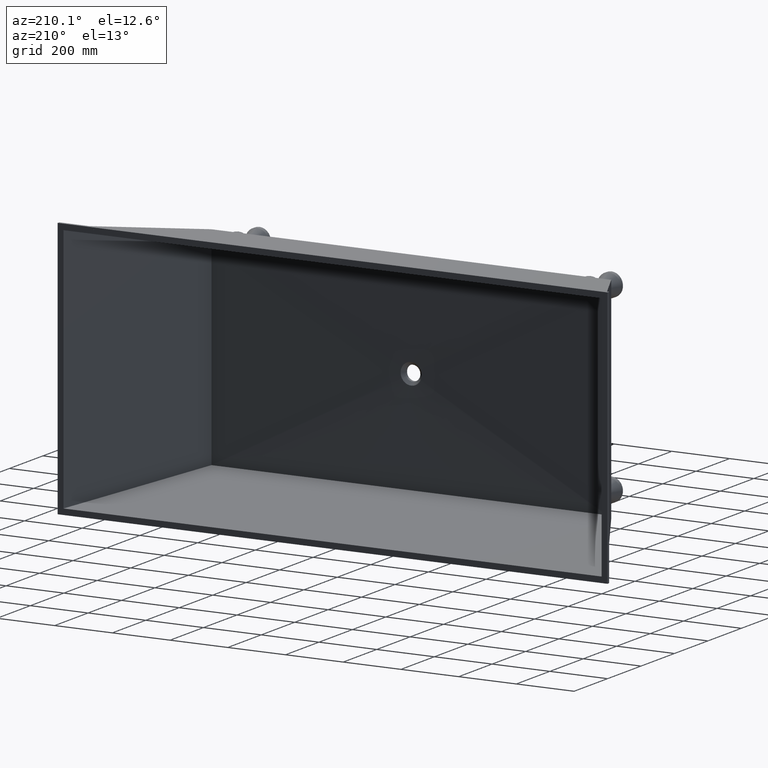
[diagram: clean part render]
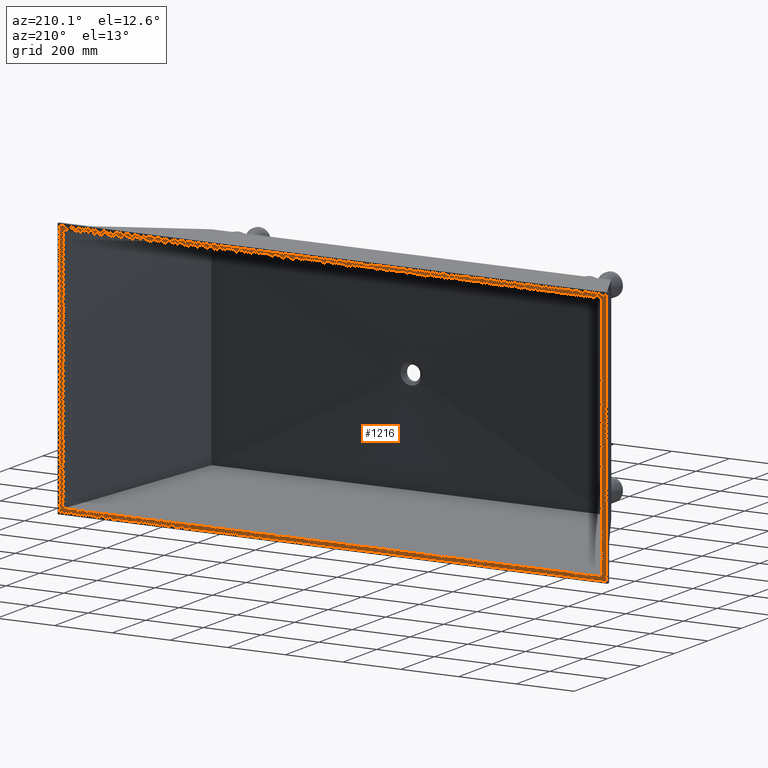
[diagram: same view with one face highlighted and labeled with its STEP entity id]
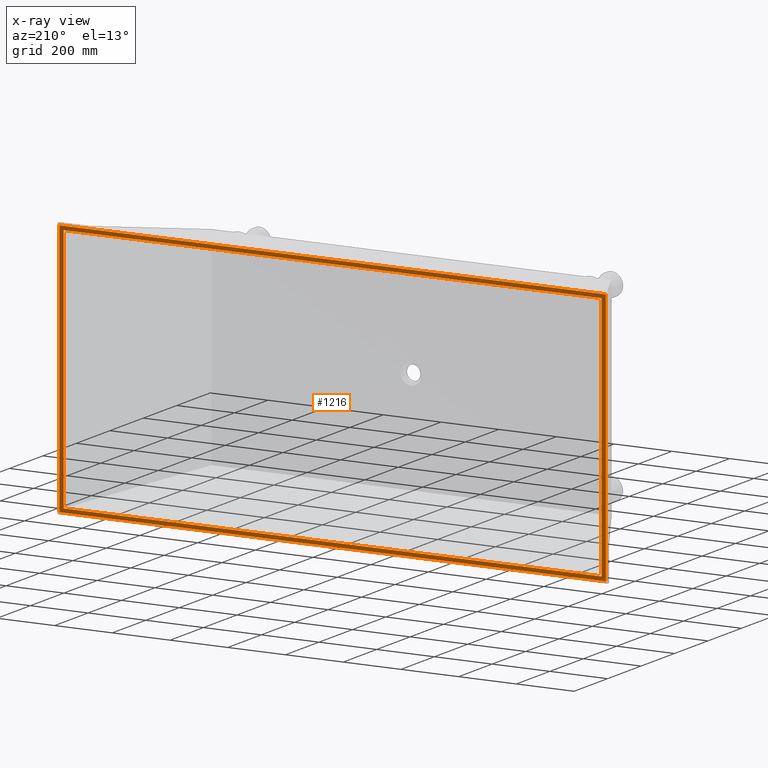
[diagram: x-ray of the same camera — body ghosted, the highlighted face saturated]
A machine part, auxiliary view. The second image highlights one B-rep face of the part: STEP entity #1216.
The next image is the same camera in x-ray: the body ghosted, the highlighted face saturated — about 0% of this face is hidden behind the body in this view.
In plain terms, the highlighted planar face has unit normal (0, -1, 0).
Its self-contained STEP definition (entity closure, byte-faithful):
#51 = FACE_BOUND ( 'NONE', #6508, .T. ) ;
#80 = DIRECTION ( 'NONE',  ( 0.0000000000000000000, 0.0000000000000000000, -1.000000000000000000 ) ) ;
#132 = VERTEX_POINT ( 'NONE', #647 ) ;
#165 = CARTESIAN_POINT ( 'NONE',  ( 0.0000000000000000000, 0.0000000000000000000, -855.0000000000000000 ) ) ;
#220 = EDGE_CURVE ( 'NONE', #720, #3292, #4341, .T. ) ;
#639 = LINE ( 'NONE', #6692, #5757 ) ;
#647 = CARTESIAN_POINT ( 'NONE',  ( -14.77674385156322300, 0.0000000000000000000, -868.1618687448989200 ) ) ;
#654 = LINE ( 'NONE', #8546, #4106 ) ;
#720 = VERTEX_POINT ( 'NONE', #1906 ) ;
#799 = CARTESIAN_POINT ( 'NONE',  ( 1879.776743851563400, -5.551115123125782700E-014, -72.49999999999995700 ) ) ;
#809 = ORIENTED_EDGE ( 'NONE', *, *, #3226, .T. ) ;
#852 = VECTOR ( 'NONE', #80, 1000.000000000000000 ) ;
#990 = ORIENTED_EDGE ( 'NONE', *, *, #6349, .T. ) ;
#1042 = VECTOR ( 'NONE', #5153, 1000.000000000000000 ) ;
#1085 = EDGE_CURVE ( 'NONE', #3806, #3351, #2160, .T. ) ;
#1119 = EDGE_CURVE ( 'NONE', #3274, #720, #1947, .T. ) ;
#1216 = ADVANCED_FACE ( 'NONE', ( #1750, #51 ), #2994, .F. ) ;
#1233 = ORIENTED_EDGE ( 'NONE', *, *, #1119, .T. ) ;
#1315 = EDGE_LOOP ( 'NONE', ( #990, #1233, #6347, #809 ) ) ;
#1750 = FACE_OUTER_BOUND ( 'NONE', #1315, .T. ) ;
#1819 = ORIENTED_EDGE ( 'NONE', *, *, #2954, .F. ) ;
#1906 = CARTESIAN_POINT ( 'NONE',  ( 1879.776743851563400, 0.0000000000000000000, 13.16186874489919800 ) ) ;
#1947 = LINE ( 'NONE', #5474, #7147 ) ;
#2160 = LINE ( 'NONE', #5485, #2559 ) ;
#2230 = ORIENTED_EDGE ( 'NONE', *, *, #4772, .F. ) ;
#2559 = VECTOR ( 'NONE', #4074, 1000.000000000000000 ) ;
#2731 = LINE ( 'NONE', #5345, #1042 ) ;
#2879 = CARTESIAN_POINT ( 'NONE',  ( 0.0000000000000000000, 0.0000000000000000000, -855.0000000000000000 ) ) ;
#2954 = EDGE_CURVE ( 'NONE', #3351, #7154, #654, .T. ) ;
#2994 = PLANE ( 'NONE',  #6312 ) ;
#3226 = EDGE_CURVE ( 'NONE', #3292, #132, #5340, .T. ) ;
#3274 = VERTEX_POINT ( 'NONE', #6554 ) ;
#3292 = VERTEX_POINT ( 'NONE', #6536 ) ;
#3351 = VERTEX_POINT ( 'NONE', #4567 ) ;
#3477 = VECTOR ( 'NONE', #7747, 1000.000000000000000 ) ;
#3806 = VERTEX_POINT ( 'NONE', #5665 ) ;
#4074 = DIRECTION ( 'NONE',  ( 1.000000000000000000, 0.0000000000000000000, 0.0000000000000000000 ) ) ;
#4090 = DIRECTION ( 'NONE',  ( 0.0000000000000000000, -0.0000000000000000000, -1.000000000000000000 ) ) ;
#4106 = VECTOR ( 'NONE', #4598, 1000.000000000000000 ) ;
#4328 = EDGE_CURVE ( 'NONE', #7154, #4710, #2731, .T. ) ;
#4341 = LINE ( 'NONE', #799, #852 ) ;
#4567 = CARTESIAN_POINT ( 'NONE',  ( 1865.000000000000000, 0.0000000000000000000, 0.0000000000000000000 ) ) ;
#4598 = DIRECTION ( 'NONE',  ( -2.597012923099781200E-016, 0.0000000000000000000, -1.000000000000000000 ) ) ;
#4710 = VERTEX_POINT ( 'NONE', #2879 ) ;
#4772 = EDGE_CURVE ( 'NONE', #4710, #3806, #6691, .T. ) ;
#5153 = DIRECTION ( 'NONE',  ( -1.000000000000000000, -0.0000000000000000000, -0.0000000000000000000 ) ) ;
#5340 = LINE ( 'NONE', #6452, #7342 ) ;
#5345 = CARTESIAN_POINT ( 'NONE',  ( 0.0000000000000000000, 0.0000000000000000000, -855.0000000000000000 ) ) ;
#5474 = CARTESIAN_POINT ( 'NONE',  ( 247.5000000000000600, 0.0000000000000000000, 13.16186874489919800 ) ) ;
#5485 = CARTESIAN_POINT ( 'NONE',  ( 0.0000000000000000000, 0.0000000000000000000, 0.0000000000000000000 ) ) ;
#5486 = DIRECTION ( 'NONE',  ( 1.000000000000000000, 0.0000000000000000000, 0.0000000000000000000 ) ) ;
#5665 = CARTESIAN_POINT ( 'NONE',  ( 0.0000000000000000000, 0.0000000000000000000, 0.0000000000000000000 ) ) ;
#5757 = VECTOR ( 'NONE', #6853, 1000.000000000000000 ) ;
#6312 = AXIS2_PLACEMENT_3D ( 'NONE', #165, #7119, #4090 ) ;
#6347 = ORIENTED_EDGE ( 'NONE', *, *, #220, .T. ) ;
#6349 = EDGE_CURVE ( 'NONE', #132, #3274, #639, .T. ) ;
#6452 = CARTESIAN_POINT ( 'NONE',  ( 1617.500000000000200, 0.0000000000000000000, -868.1618687448990400 ) ) ;
#6474 = DIRECTION ( 'NONE',  ( -1.000000000000000000, 0.0000000000000000000, 8.103817697993843300E-017 ) ) ;
#6508 = EDGE_LOOP ( 'NONE', ( #2230, #8049, #1819, #7625 ) ) ;
#6536 = CARTESIAN_POINT ( 'NONE',  ( 1879.776743851563400, 0.0000000000000000000, -868.1618687448991500 ) ) ;
#6554 = CARTESIAN_POINT ( 'NONE',  ( -14.77674385156322300, 0.0000000000000000000, 13.16186874489919800 ) ) ;
#6691 = LINE ( 'NONE', #7773, #3477 ) ;
#6692 = CARTESIAN_POINT ( 'NONE',  ( -14.77674385156324600, 0.0000000000000000000, -782.5000000000000000 ) ) ;
#6853 = DIRECTION ( 'NONE',  ( 0.0000000000000000000, 0.0000000000000000000, 1.000000000000000000 ) ) ;
#7119 = DIRECTION ( 'NONE',  ( 0.0000000000000000000, -1.000000000000000000, 0.0000000000000000000 ) ) ;
#7147 = VECTOR ( 'NONE', #5486, 1000.000000000000000 ) ;
#7154 = VERTEX_POINT ( 'NONE', #8352 ) ;
#7342 = VECTOR ( 'NONE', #6474, 1000.000000000000000 ) ;
#7625 = ORIENTED_EDGE ( 'NONE', *, *, #1085, .F. ) ;
#7747 = DIRECTION ( 'NONE',  ( -0.0000000000000000000, -0.0000000000000000000, 1.000000000000000000 ) ) ;
#7773 = CARTESIAN_POINT ( 'NONE',  ( 0.0000000000000000000, 0.0000000000000000000, 0.0000000000000000000 ) ) ;
#8049 = ORIENTED_EDGE ( 'NONE', *, *, #4328, .F. ) ;
#8352 = CARTESIAN_POINT ( 'NONE',  ( 1864.999999999998900, 0.0000000000000000000, -855.0000000000000000 ) ) ;
#8546 = CARTESIAN_POINT ( 'NONE',  ( 1865.000000000000000, 0.0000000000000000000, 0.0000000000000000000 ) ) ;